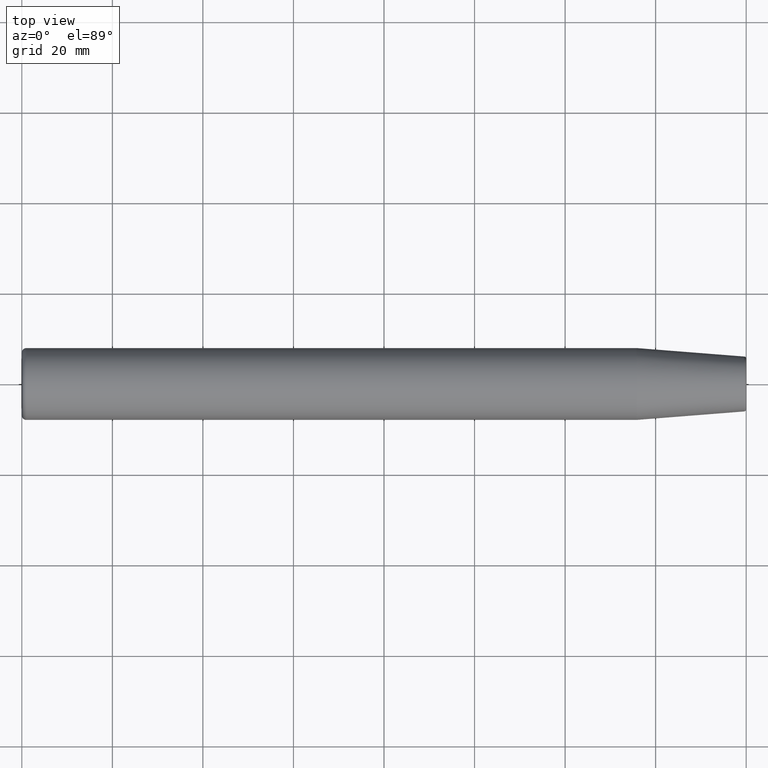
[diagram: clean part render]
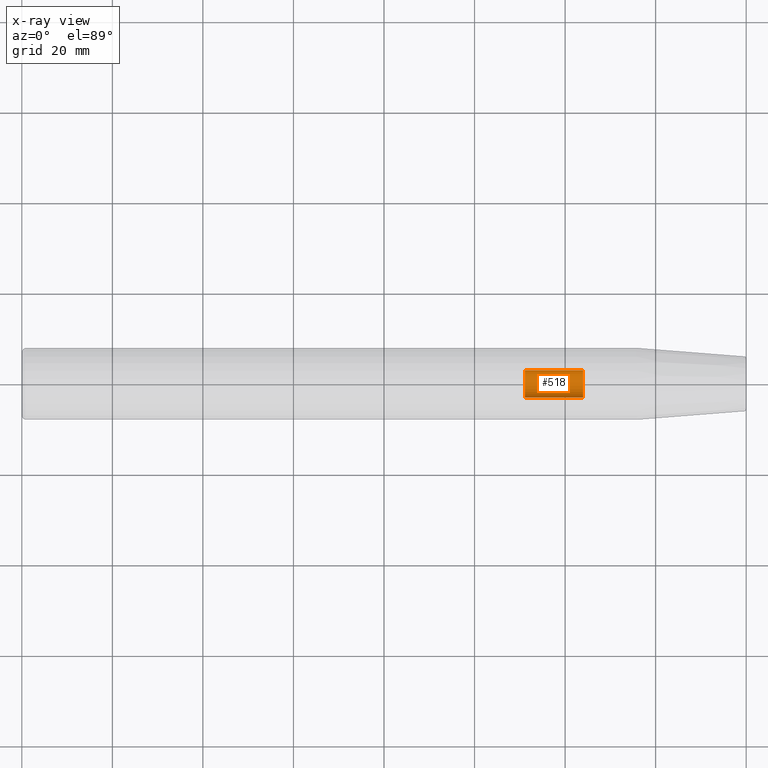
[diagram: x-ray — body ghosted, one internal face saturated and labeled with its STEP entity id]
A machine part, top view, then the same camera in x-ray: the body is ghosted and one INTERNAL B-rep face — a face not visible from any outside direction — is saturated and labeled: STEP entity #518.
In plain terms, the highlighted cylindrical surface (edge-blend (fillet) strip) has radius 3.0312 mm, axis along (1, 0, 0).
Its self-contained STEP definition (entity closure, byte-faithful):
#86=DIRECTION('',(1.E0,0.E0,0.E0));
#87=VECTOR('',#86,1.279529946162E1);
#88=CARTESIAN_POINT('',(1.111547005384E2,3.03125E0,0.E0));
#89=LINE('',#88,#87);
#90=DIRECTION('',(1.E0,0.E0,0.E0));
#91=VECTOR('',#90,1.279529946162E1);
#92=CARTESIAN_POINT('',(1.111547005384E2,-3.03125E0,0.E0));
#93=LINE('',#92,#91);
#94=CARTESIAN_POINT('',(1.111547005384E2,0.E0,0.E0));
#95=DIRECTION('',(-1.E0,0.E0,0.E0));
#96=DIRECTION('',(0.E0,1.E0,0.E0));
#97=AXIS2_PLACEMENT_3D('',#94,#95,#96);
#117=CARTESIAN_POINT('',(1.2395E2,0.E0,0.E0));
#118=DIRECTION('',(-1.E0,0.E0,0.E0));
#119=DIRECTION('',(0.E0,1.E0,0.E0));
#120=AXIS2_PLACEMENT_3D('',#117,#118,#119);
#312=CARTESIAN_POINT('',(1.111547005384E2,3.03125E0,0.E0));
#313=VERTEX_POINT('',#312);
#314=CARTESIAN_POINT('',(1.2395E2,3.03125E0,0.E0));
#315=VERTEX_POINT('',#314);
#348=CARTESIAN_POINT('',(1.111547005384E2,-3.03125E0,0.E0));
#349=VERTEX_POINT('',#348);
#350=CARTESIAN_POINT('',(1.2395E2,-3.03125E0,0.E0));
#351=VERTEX_POINT('',#350);
#504=CARTESIAN_POINT('',(-8.E0,0.E0,0.E0));
#505=DIRECTION('',(1.E0,0.E0,0.E0));
#506=DIRECTION('',(0.E0,-1.E0,0.E0));
#507=AXIS2_PLACEMENT_3D('',#504,#505,#506);
#508=CYLINDRICAL_SURFACE('',#507,3.03125E0);
#510=ORIENTED_EDGE('',*,*,#509,.T.);
#512=ORIENTED_EDGE('',*,*,#511,.T.);
#514=ORIENTED_EDGE('',*,*,#513,.F.);
#515=ORIENTED_EDGE('',*,*,#497,.F.);
#516=EDGE_LOOP('',(#510,#512,#514,#515));
#517=FACE_OUTER_BOUND('',#516,.F.);
#518=ADVANCED_FACE('',(#517),#508,.F.);
#98=CIRCLE('',#97,3.03125E0);
#121=CIRCLE('',#120,3.03125E0);
#497=EDGE_CURVE('',#313,#349,#98,.T.);
#509=EDGE_CURVE('',#313,#315,#89,.T.);
#511=EDGE_CURVE('',#315,#351,#121,.T.);
#513=EDGE_CURVE('',#349,#351,#93,.T.);